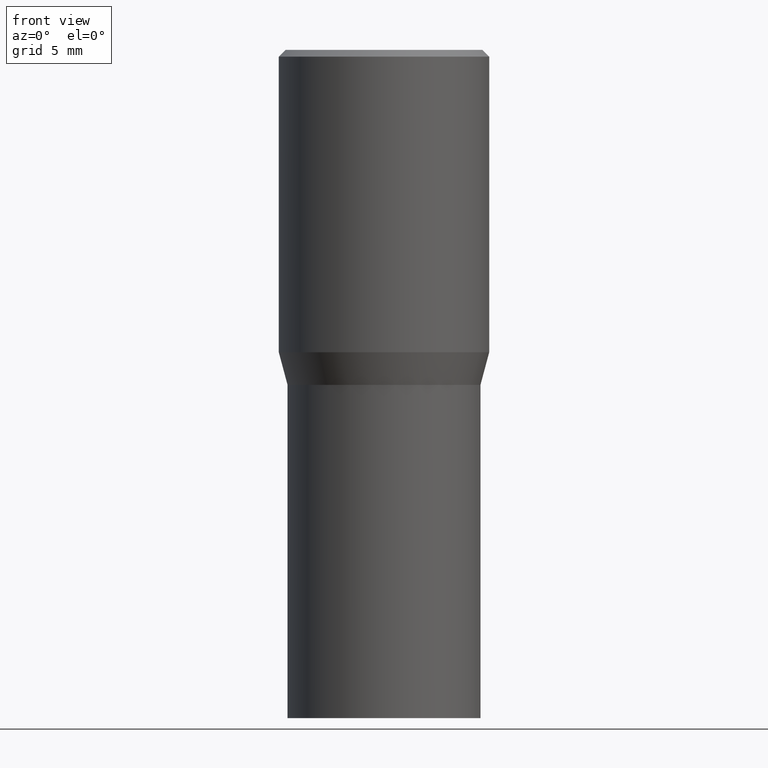
[diagram: clean part render]
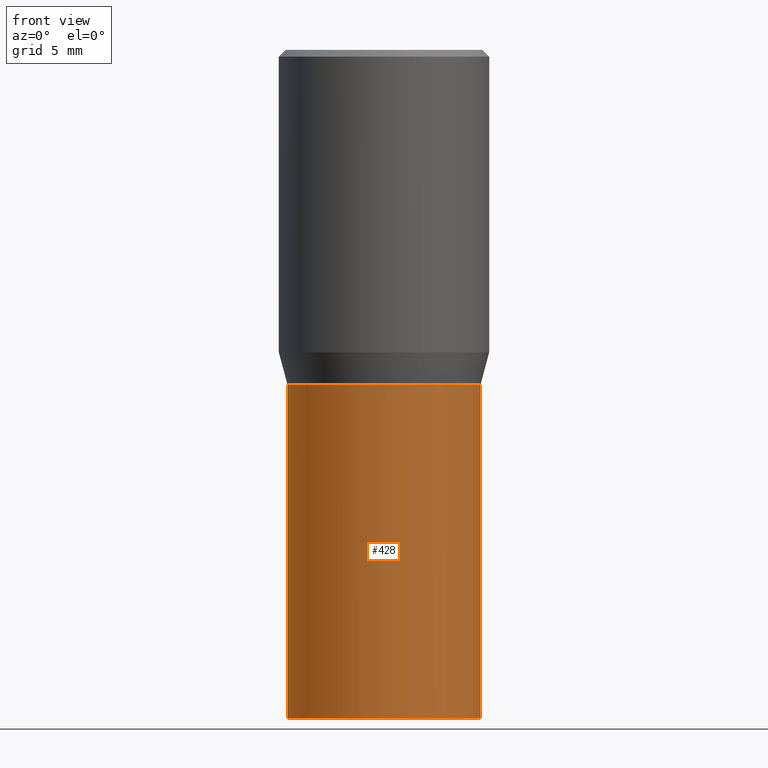
[diagram: same view with one face highlighted and labeled with its STEP entity id]
A machine part, front view. The second image highlights one B-rep face of the part: STEP entity #428.
In plain terms, the highlighted cylindrical surface (partial cylindrical patch) has radius 5.5004 mm, axis along (-0, 0, 1).
Its self-contained STEP definition (entity closure, byte-faithful):
#11 = DIRECTION ( 'NONE',  ( 1.000000000000000000, -6.982962677686266711E-15, 4.876176775795935793E-29 ) ) ;
#23 = VERTEX_POINT ( 'NONE', #409 ) ;
#27 = ORIENTED_EDGE ( 'NONE', *, *, #223, .F. ) ;
#68 = CIRCLE ( 'NONE', #111, 0.2165500000000000203 ) ;
#84 = CYLINDRICAL_SURFACE ( 'NONE', #244, 0.2165500000000000203 ) ;
#100 = VERTEX_POINT ( 'NONE', #310 ) ;
#108 = CARTESIAN_POINT ( 'NONE',  ( -0.2165500000000000203, -2.392727693248884740E-15, -0.7520000000000001128 ) ) ;
#111 = AXIS2_PLACEMENT_3D ( 'NONE', #177, #464, #112 ) ;
#112 = DIRECTION ( 'NONE',  ( 1.000000000000000000, -6.982962677686266711E-15, 0.000000000000000000 ) ) ;
#119 = ORIENTED_EDGE ( 'NONE', *, *, #167, .F. ) ;
#129 = ORIENTED_EDGE ( 'NONE', *, *, #267, .T. ) ;
#143 = EDGE_CURVE ( 'NONE', #23, #156, #183, .T. ) ;
#148 = CARTESIAN_POINT ( 'NONE',  ( 0.2165500000000000203, -6.749382576117678999E-15, -1.500000000000000222 ) ) ;
#153 = VERTEX_POINT ( 'NONE', #108 ) ;
#156 = VERTEX_POINT ( 'NONE', #148 ) ;
#167 = EDGE_CURVE ( 'NONE', #23, #153, #319, .T. ) ;
#173 = CARTESIAN_POINT ( 'NONE',  ( -0.2165500000000000203, 1.538680294288497096E-15, -1.065195393794699923E-29 ) ) ;
#177 = CARTESIAN_POINT ( 'NONE',  ( 1.838992542251222813E-29, -2.625593966810045497E-15, -0.7520000000000001128 ) ) ;
#183 = CIRCLE ( 'NONE', #262, 0.2165500000000000203 ) ;
#188 = CARTESIAN_POINT ( 'NONE',  ( 0.000000000000000000, 0.000000000000000000, 0.000000000000000000 ) ) ;
#195 = EDGE_LOOP ( 'NONE', ( #119, #272, #129, #27 ) ) ;
#217 = DIRECTION ( 'NONE',  ( -2.445468806185136877E-29, 3.491481338843145188E-15, 1.000000000000000000 ) ) ;
#223 = EDGE_CURVE ( 'NONE', #153, #100, #68, .T. ) ;
#244 = AXIS2_PLACEMENT_3D ( 'NONE', #188, #324, #11 ) ;
#245 = DIRECTION ( 'NONE',  ( -2.445468806185136597E-29, 3.491481338843145583E-15, 1.000000000000000000 ) ) ;
#247 = DIRECTION ( 'NONE',  ( 1.000000000000000000, -6.982962677686264344E-15, 0.000000000000000000 ) ) ;
#248 = VECTOR ( 'NONE', #217, 39.37007874015748143 ) ;
#262 = AXIS2_PLACEMENT_3D ( 'NONE', #352, #245, #247 ) ;
#263 = VECTOR ( 'NONE', #421, 39.37007874015748143 ) ;
#267 = EDGE_CURVE ( 'NONE', #156, #100, #280, .T. ) ;
#272 = ORIENTED_EDGE ( 'NONE', *, *, #143, .T. ) ;
#280 = LINE ( 'NONE', #393, #263 ) ;
#310 = CARTESIAN_POINT ( 'NONE',  ( 0.2165500000000000203, -4.137754534663007109E-15, -0.7520000000000001128 ) ) ;
#319 = LINE ( 'NONE', #173, #248 ) ;
#322 = FACE_OUTER_BOUND ( 'NONE', #195, .T. ) ;
#324 = DIRECTION ( 'NONE',  ( -2.445468806185136597E-29, 3.491481338843145583E-15, 1.000000000000000000 ) ) ;
#352 = CARTESIAN_POINT ( 'NONE',  ( 3.668203209277704895E-29, -5.237222008264718177E-15, -1.500000000000000222 ) ) ;
#393 = CARTESIAN_POINT ( 'NONE',  ( 0.2165500000000000203, -1.512160567852961217E-15, 1.055936080798610036E-29 ) ) ;
#409 = CARTESIAN_POINT ( 'NONE',  ( -0.2165500000000000203, -2.392727693248884740E-15, -1.500000000000000222 ) ) ;
#421 = DIRECTION ( 'NONE',  ( -2.445468806185136877E-29, 3.491481338843145188E-15, 1.000000000000000000 ) ) ;
#428 = ADVANCED_FACE ( 'NONE', ( #322 ), #84, .T. ) ;
#464 = DIRECTION ( 'NONE',  ( -2.445468806185136597E-29, 3.491481338843145583E-15, 1.000000000000000000 ) ) ;